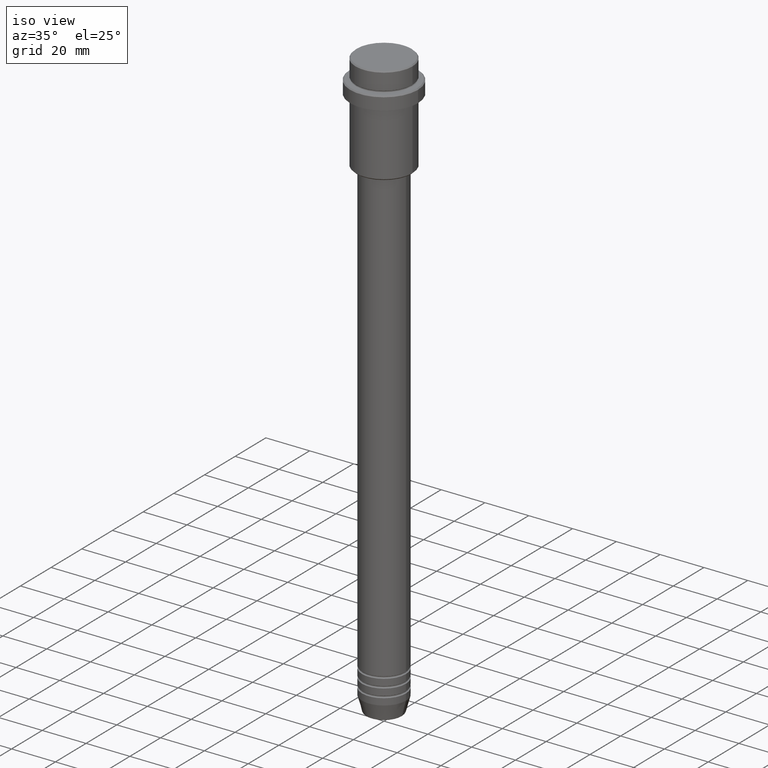
[diagram: clean part render]
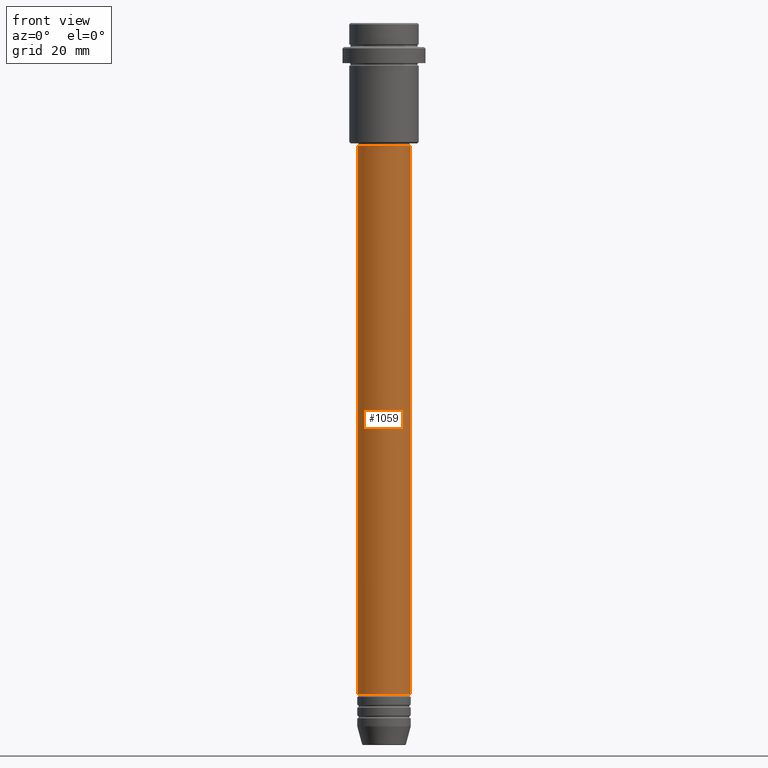
[diagram: tour spotlight — one face highlighted and labeled with its STEP entity id]
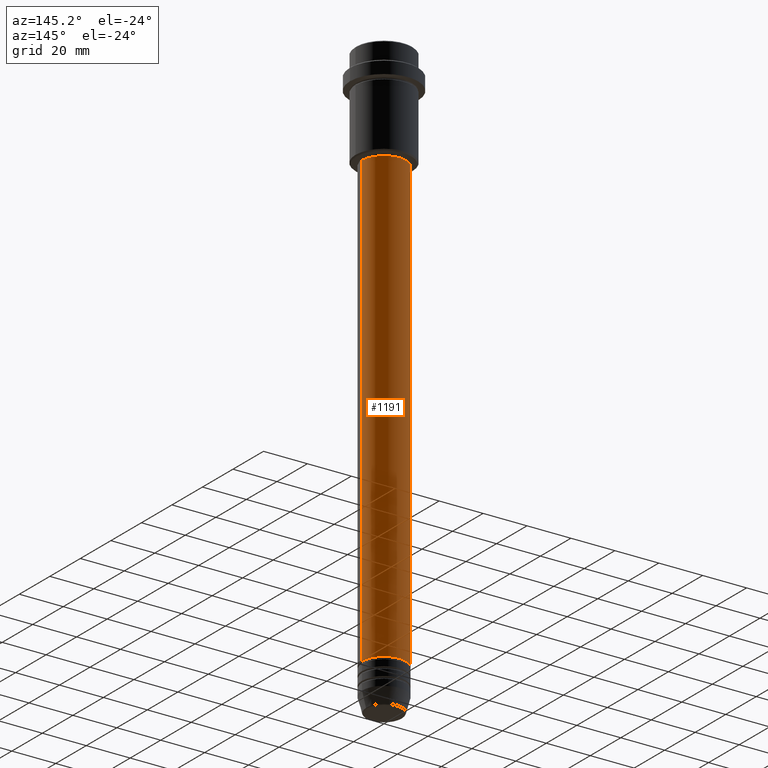
[diagram: tour spotlight — one face highlighted and labeled with its STEP entity id]
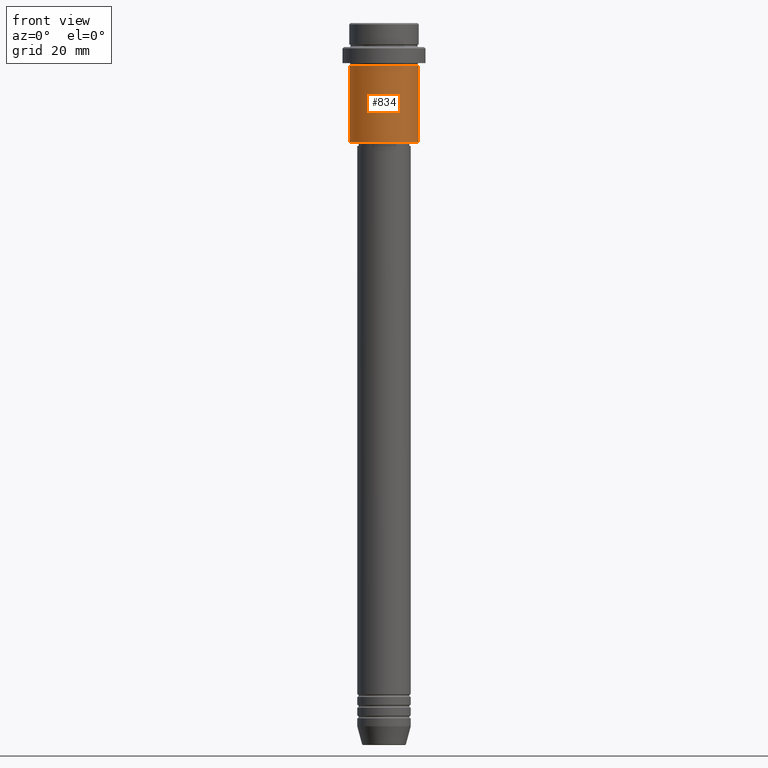
[diagram: tour spotlight — one face highlighted and labeled with its STEP entity id]
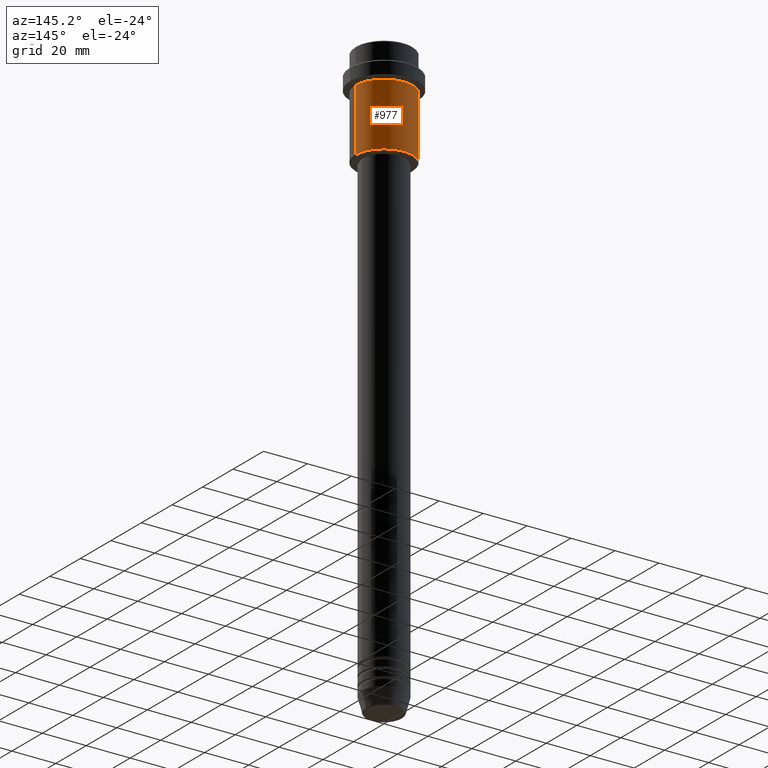
[diagram: tour spotlight — one face highlighted and labeled with its STEP entity id]
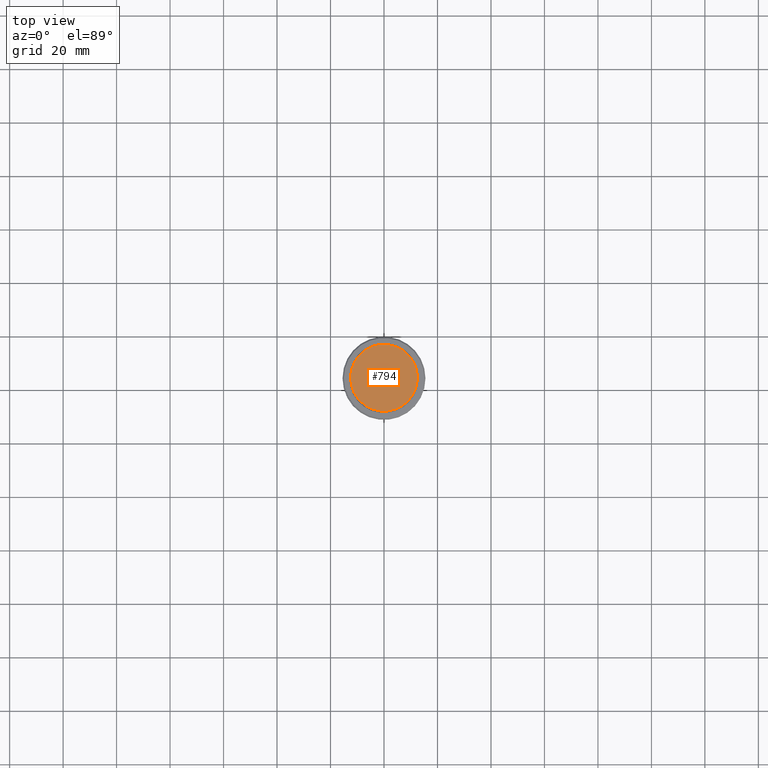
[diagram: tour spotlight — one face highlighted and labeled with its STEP entity id]
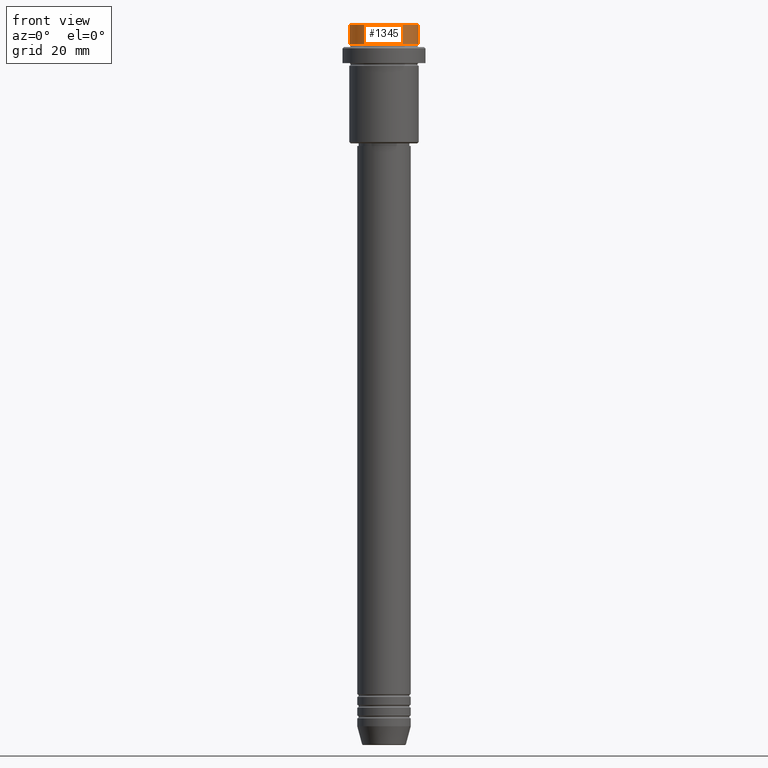
[diagram: tour spotlight — one face highlighted and labeled with its STEP entity id]
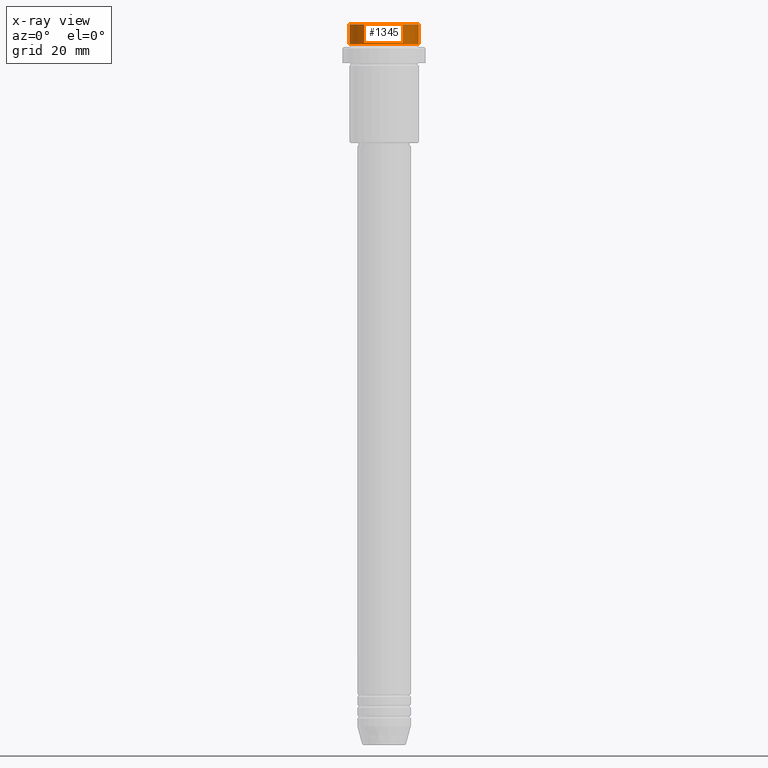
[diagram: x-ray of the same camera — body ghosted, this tour face saturated]
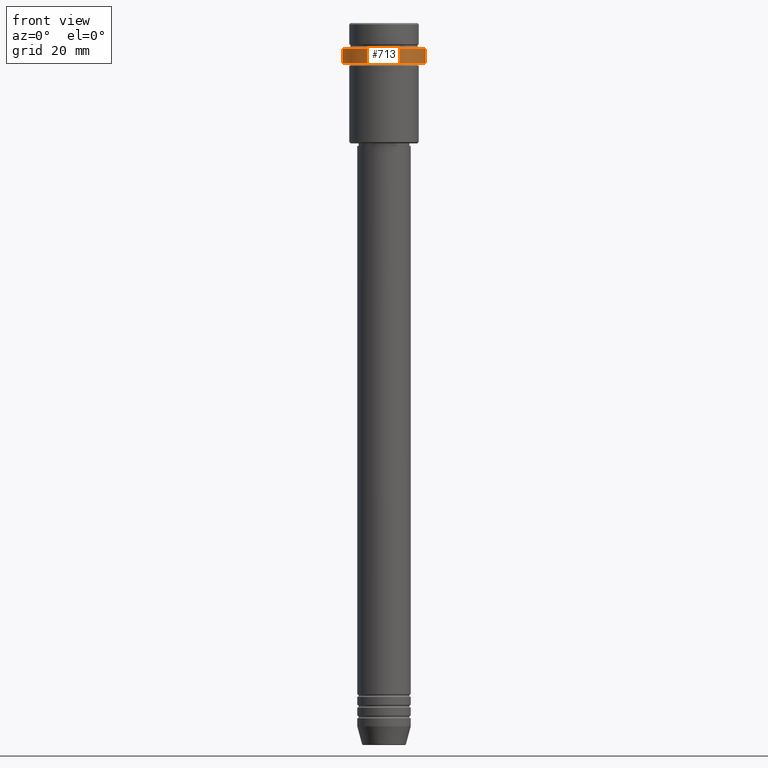
[diagram: tour spotlight — one face highlighted and labeled with its STEP entity id]
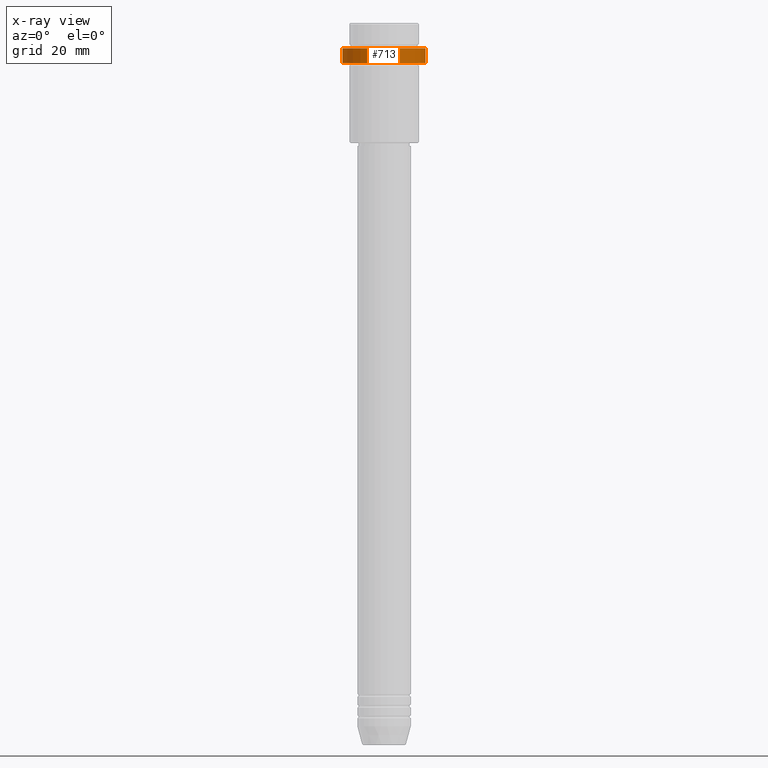
[diagram: x-ray of the same camera — body ghosted, this tour face saturated]
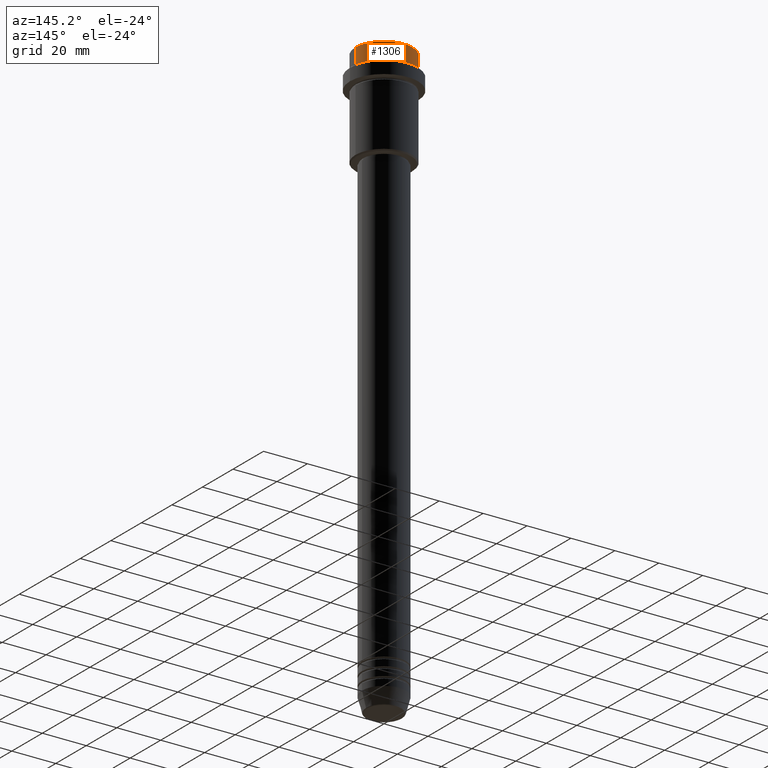
[diagram: tour spotlight — one face highlighted and labeled with its STEP entity id]
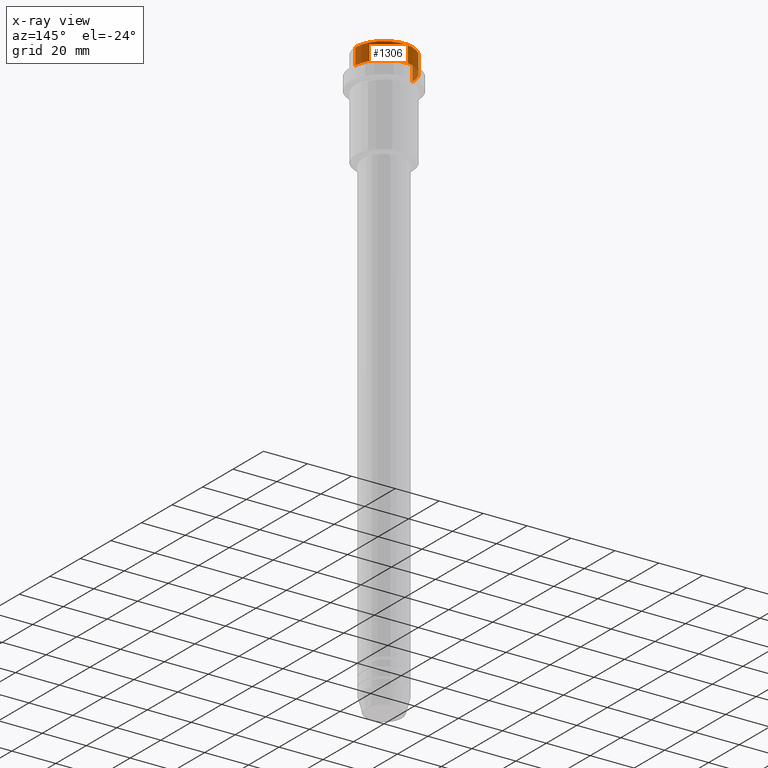
[diagram: x-ray of the same camera — body ghosted, this tour face saturated]
A machine part: a face-by-face anatomy tour. The part has 52 B-rep faces; the first image is the clean iso view, then the 8 largest visible faces are spotlighted one at a time (largest first), each with its STEP entity span.

Face 1 — front view, entity #1059. In plain terms, the highlighted cylindrical surface (edge-blend (fillet) strip) has radius 10 mm, axis along (-0, -0, 1).
Definition (entity closure, byte-faithful):
#21 = DIRECTION ( 'NONE',  ( -0.000000000000000000, -0.000000000000000000, 1.000000000000000000 ) ) ;
#34 = AXIS2_PLACEMENT_3D ( 'NONE', #577, #1003, #233 ) ;
#70 = DIRECTION ( 'NONE',  ( -0.000000000000000000, -0.000000000000000000, 1.000000000000000000 ) ) ;
#89 = EDGE_CURVE ( 'NONE', #989, #853, #238, .T. ) ;
#99 = CIRCLE ( 'NONE', #605, 10.00000000000000000 ) ;
#106 = EDGE_LOOP ( 'NONE', ( #324, #198, #1250, #1032 ) ) ;
#133 = CARTESIAN_POINT ( 'NONE',  ( -10.00000000000000178, 1.224646799147353454E-15, 0.000000000000000000 ) ) ;
#164 = DIRECTION ( 'NONE',  ( 1.000000000000000000, 0.000000000000000000, 0.000000000000000000 ) ) ;
#198 = ORIENTED_EDGE ( 'NONE', *, *, #931, .T. ) ;
#233 = DIRECTION ( 'NONE',  ( 1.000000000000000000, 0.000000000000000000, 0.000000000000000000 ) ) ;
#238 = LINE ( 'NONE', #681, #1188 ) ;
#324 = ORIENTED_EDGE ( 'NONE', *, *, #1189, .F. ) ;
#354 = CIRCLE ( 'NONE', #544, 10.00000000000000178 ) ;
#430 = EDGE_CURVE ( 'NONE', #1346, #853, #354, .T. ) ;
#544 = AXIS2_PLACEMENT_3D ( 'NONE', #1050, #70, #829 ) ;
#565 = CYLINDRICAL_SURFACE ( 'NONE', #34, 10.00000000000000178 ) ;
#577 = CARTESIAN_POINT ( 'NONE',  ( 0.000000000000000000, 0.000000000000000000, 0.000000000000000000 ) ) ;
#582 = VERTEX_POINT ( 'NONE', #751 ) ;
#605 = AXIS2_PLACEMENT_3D ( 'NONE', #1146, #1171, #164 ) ;
#681 = CARTESIAN_POINT ( 'NONE',  ( 10.00000000000000178, 0.000000000000000000, 0.000000000000000000 ) ) ;
#751 = CARTESIAN_POINT ( 'NONE',  ( -10.00000000000000000, 1.224646799147353256E-15, -250.9999999999998863 ) ) ;
#829 = DIRECTION ( 'NONE',  ( 1.000000000000000000, 0.000000000000000000, 0.000000000000000000 ) ) ;
#853 = VERTEX_POINT ( 'NONE', #1163 ) ;
#894 = DIRECTION ( 'NONE',  ( -0.000000000000000000, -0.000000000000000000, 1.000000000000000000 ) ) ;
#931 = EDGE_CURVE ( 'NONE', #582, #989, #99, .T. ) ;
#989 = VERTEX_POINT ( 'NONE', #1233 ) ;
#1003 = DIRECTION ( 'NONE',  ( -0.000000000000000000, -0.000000000000000000, 1.000000000000000000 ) ) ;
#1032 = ORIENTED_EDGE ( 'NONE', *, *, #430, .F. ) ;
#1050 = CARTESIAN_POINT ( 'NONE',  ( 0.000000000000000000, 0.000000000000000000, -46.00000000000001421 ) ) ;
#1059 = ADVANCED_FACE ( 'NONE', ( #1371 ), #565, .T. ) ;
#1146 = CARTESIAN_POINT ( 'NONE',  ( 0.000000000000000000, 0.000000000000000000, -250.9999999999998863 ) ) ;
#1163 = CARTESIAN_POINT ( 'NONE',  ( 10.00000000000000178, 0.000000000000000000, -46.00000000000001421 ) ) ;
#1171 = DIRECTION ( 'NONE',  ( -0.000000000000000000, -0.000000000000000000, 1.000000000000000000 ) ) ;
#1182 = VECTOR ( 'NONE', #21, 1000.000000000000000 ) ;
#1188 = VECTOR ( 'NONE', #894, 1000.000000000000000 ) ;
#1189 = EDGE_CURVE ( 'NONE', #582, #1346, #1211, .T. ) ;
#1211 = LINE ( 'NONE', #133, #1182 ) ;
#1221 = CARTESIAN_POINT ( 'NONE',  ( -10.00000000000000178, 1.224646799147353454E-15, -46.00000000000001421 ) ) ;
#1233 = CARTESIAN_POINT ( 'NONE',  ( 10.00000000000000000, 0.000000000000000000, -250.9999999999998863 ) ) ;
#1250 = ORIENTED_EDGE ( 'NONE', *, *, #89, .T. ) ;
#1346 = VERTEX_POINT ( 'NONE', #1221 ) ;
#1371 = FACE_OUTER_BOUND ( 'NONE', #106, .T. ) ;

Face 2 — auxiliary view, entity #1191. In plain terms, the highlighted cylindrical surface (edge-blend (fillet) strip) has radius 10 mm, axis along (-0, -0, 1).
Definition (entity closure, byte-faithful):
#21 = DIRECTION ( 'NONE',  ( -0.000000000000000000, -0.000000000000000000, 1.000000000000000000 ) ) ;
#36 = FACE_OUTER_BOUND ( 'NONE', #152, .T. ) ;
#83 = AXIS2_PLACEMENT_3D ( 'NONE', #1229, #992, #444 ) ;
#89 = EDGE_CURVE ( 'NONE', #989, #853, #238, .T. ) ;
#133 = CARTESIAN_POINT ( 'NONE',  ( -10.00000000000000178, 1.224646799147353454E-15, 0.000000000000000000 ) ) ;
#137 = DIRECTION ( 'NONE',  ( 1.000000000000000000, 0.000000000000000000, 0.000000000000000000 ) ) ;
#152 = EDGE_LOOP ( 'NONE', ( #1320, #1398, #345, #741 ) ) ;
#184 = CIRCLE ( 'NONE', #270, 10.00000000000000000 ) ;
#238 = LINE ( 'NONE', #681, #1188 ) ;
#270 = AXIS2_PLACEMENT_3D ( 'NONE', #838, #623, #494 ) ;
#345 = ORIENTED_EDGE ( 'NONE', *, *, #844, .F. ) ;
#420 = EDGE_CURVE ( 'NONE', #989, #582, #184, .T. ) ;
#444 = DIRECTION ( 'NONE',  ( 1.000000000000000000, 0.000000000000000000, 0.000000000000000000 ) ) ;
#494 = DIRECTION ( 'NONE',  ( 1.000000000000000000, 0.000000000000000000, 0.000000000000000000 ) ) ;
#568 = DIRECTION ( 'NONE',  ( -0.000000000000000000, -0.000000000000000000, 1.000000000000000000 ) ) ;
#582 = VERTEX_POINT ( 'NONE', #751 ) ;
#623 = DIRECTION ( 'NONE',  ( -0.000000000000000000, -0.000000000000000000, 1.000000000000000000 ) ) ;
#681 = CARTESIAN_POINT ( 'NONE',  ( 10.00000000000000178, 0.000000000000000000, 0.000000000000000000 ) ) ;
#741 = ORIENTED_EDGE ( 'NONE', *, *, #89, .F. ) ;
#751 = CARTESIAN_POINT ( 'NONE',  ( -10.00000000000000000, 1.224646799147353256E-15, -250.9999999999998863 ) ) ;
#838 = CARTESIAN_POINT ( 'NONE',  ( 0.000000000000000000, 0.000000000000000000, -250.9999999999998863 ) ) ;
#844 = EDGE_CURVE ( 'NONE', #853, #1346, #970, .T. ) ;
#853 = VERTEX_POINT ( 'NONE', #1163 ) ;
#864 = AXIS2_PLACEMENT_3D ( 'NONE', #1331, #568, #137 ) ;
#889 = CYLINDRICAL_SURFACE ( 'NONE', #864, 10.00000000000000178 ) ;
#894 = DIRECTION ( 'NONE',  ( -0.000000000000000000, -0.000000000000000000, 1.000000000000000000 ) ) ;
#970 = CIRCLE ( 'NONE', #83, 10.00000000000000178 ) ;
#989 = VERTEX_POINT ( 'NONE', #1233 ) ;
#992 = DIRECTION ( 'NONE',  ( -0.000000000000000000, -0.000000000000000000, 1.000000000000000000 ) ) ;
#1163 = CARTESIAN_POINT ( 'NONE',  ( 10.00000000000000178, 0.000000000000000000, -46.00000000000001421 ) ) ;
#1182 = VECTOR ( 'NONE', #21, 1000.000000000000000 ) ;
#1188 = VECTOR ( 'NONE', #894, 1000.000000000000000 ) ;
#1189 = EDGE_CURVE ( 'NONE', #582, #1346, #1211, .T. ) ;
#1191 = ADVANCED_FACE ( 'NONE', ( #36 ), #889, .T. ) ;
#1211 = LINE ( 'NONE', #133, #1182 ) ;
#1221 = CARTESIAN_POINT ( 'NONE',  ( -10.00000000000000178, 1.224646799147353454E-15, -46.00000000000001421 ) ) ;
#1229 = CARTESIAN_POINT ( 'NONE',  ( 0.000000000000000000, 0.000000000000000000, -46.00000000000001421 ) ) ;
#1233 = CARTESIAN_POINT ( 'NONE',  ( 10.00000000000000000, 0.000000000000000000, -250.9999999999998863 ) ) ;
#1320 = ORIENTED_EDGE ( 'NONE', *, *, #420, .T. ) ;
#1331 = CARTESIAN_POINT ( 'NONE',  ( 0.000000000000000000, 0.000000000000000000, 0.000000000000000000 ) ) ;
#1346 = VERTEX_POINT ( 'NONE', #1221 ) ;
#1398 = ORIENTED_EDGE ( 'NONE', *, *, #1189, .T. ) ;

Face 3 — front view, entity #834. In plain terms, the highlighted cylindrical surface (edge-blend (fillet) strip) has radius 13 mm, axis along (-0, -0, 1).
Definition (entity closure, byte-faithful):
#54 = CIRCLE ( 'NONE', #787, 13.00000000000000000 ) ;
#90 = CARTESIAN_POINT ( 'NONE',  ( 0.000000000000000000, 0.000000000000000000, -16.00000000000000000 ) ) ;
#104 = CARTESIAN_POINT ( 'NONE',  ( 13.00000000000000000, 0.000000000000000000, -44.50000000000004263 ) ) ;
#220 = DIRECTION ( 'NONE',  ( -0.000000000000000000, -0.000000000000000000, 1.000000000000000000 ) ) ;
#227 = DIRECTION ( 'NONE',  ( -0.000000000000000000, -0.000000000000000000, 1.000000000000000000 ) ) ;
#269 = VERTEX_POINT ( 'NONE', #104 ) ;
#275 = EDGE_CURVE ( 'NONE', #269, #1235, #429, .T. ) ;
#300 = VERTEX_POINT ( 'NONE', #1341 ) ;
#330 = VECTOR ( 'NONE', #529, 1000.000000000000000 ) ;
#386 = CARTESIAN_POINT ( 'NONE',  ( 0.000000000000000000, 0.000000000000000000, -44.50000000000004263 ) ) ;
#411 = DIRECTION ( 'NONE',  ( 1.000000000000000000, 0.000000000000000000, 0.000000000000000000 ) ) ;
#429 = LINE ( 'NONE', #1317, #330 ) ;
#457 = LINE ( 'NONE', #900, #1127 ) ;
#529 = DIRECTION ( 'NONE',  ( -0.000000000000000000, -0.000000000000000000, 1.000000000000000000 ) ) ;
#543 = EDGE_CURVE ( 'NONE', #617, #1235, #54, .T. ) ;
#547 = ORIENTED_EDGE ( 'NONE', *, *, #275, .T. ) ;
#576 = ORIENTED_EDGE ( 'NONE', *, *, #671, .T. ) ;
#617 = VERTEX_POINT ( 'NONE', #1287 ) ;
#634 = CIRCLE ( 'NONE', #1247, 13.00000000000000000 ) ;
#659 = EDGE_CURVE ( 'NONE', #300, #617, #457, .T. ) ;
#671 = EDGE_CURVE ( 'NONE', #300, #269, #634, .T. ) ;
#733 = CARTESIAN_POINT ( 'NONE',  ( 13.00000000000000000, 0.000000000000000000, -16.00000000000000000 ) ) ;
#761 = ORIENTED_EDGE ( 'NONE', *, *, #543, .F. ) ;
#775 = FACE_OUTER_BOUND ( 'NONE', #839, .T. ) ;
#787 = AXIS2_PLACEMENT_3D ( 'NONE', #90, #1315, #411 ) ;
#788 = CARTESIAN_POINT ( 'NONE',  ( 0.000000000000000000, 0.000000000000000000, 0.000000000000000000 ) ) ;
#811 = AXIS2_PLACEMENT_3D ( 'NONE', #788, #227, #909 ) ;
#824 = DIRECTION ( 'NONE',  ( -0.000000000000000000, -0.000000000000000000, 1.000000000000000000 ) ) ;
#834 = ADVANCED_FACE ( 'NONE', ( #775 ), #1212, .T. ) ;
#839 = EDGE_LOOP ( 'NONE', ( #1325, #576, #547, #761 ) ) ;
#900 = CARTESIAN_POINT ( 'NONE',  ( -13.00000000000000000, 1.592040838891559095E-15, 0.000000000000000000 ) ) ;
#909 = DIRECTION ( 'NONE',  ( 1.000000000000000000, 0.000000000000000000, 0.000000000000000000 ) ) ;
#1127 = VECTOR ( 'NONE', #220, 1000.000000000000000 ) ;
#1142 = DIRECTION ( 'NONE',  ( -1.000000000000000000, 0.000000000000000000, 0.000000000000000000 ) ) ;
#1212 = CYLINDRICAL_SURFACE ( 'NONE', #811, 13.00000000000000000 ) ;
#1235 = VERTEX_POINT ( 'NONE', #733 ) ;
#1247 = AXIS2_PLACEMENT_3D ( 'NONE', #386, #824, #1142 ) ;
#1287 = CARTESIAN_POINT ( 'NONE',  ( -13.00000000000000000, 1.592040838891559095E-15, -16.00000000000000000 ) ) ;
#1315 = DIRECTION ( 'NONE',  ( -0.000000000000000000, -0.000000000000000000, 1.000000000000000000 ) ) ;
#1317 = CARTESIAN_POINT ( 'NONE',  ( 13.00000000000000000, 0.000000000000000000, 0.000000000000000000 ) ) ;
#1325 = ORIENTED_EDGE ( 'NONE', *, *, #659, .F. ) ;
#1341 = CARTESIAN_POINT ( 'NONE',  ( -13.00000000000000000, 1.592040838891559095E-15, -44.50000000000004263 ) ) ;

Face 4 — auxiliary view, entity #977. In plain terms, the highlighted cylindrical surface (edge-blend (fillet) strip) has radius 13 mm, axis along (-0, -0, 1).
Definition (entity closure, byte-faithful):
#4 = CARTESIAN_POINT ( 'NONE',  ( 0.000000000000000000, 0.000000000000000000, 0.000000000000000000 ) ) ;
#52 = EDGE_LOOP ( 'NONE', ( #645, #1267, #406, #1288 ) ) ;
#104 = CARTESIAN_POINT ( 'NONE',  ( 13.00000000000000000, 0.000000000000000000, -44.50000000000004263 ) ) ;
#107 = AXIS2_PLACEMENT_3D ( 'NONE', #171, #609, #1046 ) ;
#171 = CARTESIAN_POINT ( 'NONE',  ( 0.000000000000000000, 0.000000000000000000, -44.50000000000004263 ) ) ;
#192 = EDGE_CURVE ( 'NONE', #1235, #617, #1114, .T. ) ;
#220 = DIRECTION ( 'NONE',  ( -0.000000000000000000, -0.000000000000000000, 1.000000000000000000 ) ) ;
#232 = EDGE_CURVE ( 'NONE', #269, #300, #729, .T. ) ;
#269 = VERTEX_POINT ( 'NONE', #104 ) ;
#275 = EDGE_CURVE ( 'NONE', #269, #1235, #429, .T. ) ;
#300 = VERTEX_POINT ( 'NONE', #1341 ) ;
#305 = DIRECTION ( 'NONE',  ( -0.000000000000000000, -0.000000000000000000, 1.000000000000000000 ) ) ;
#330 = VECTOR ( 'NONE', #529, 1000.000000000000000 ) ;
#406 = ORIENTED_EDGE ( 'NONE', *, *, #192, .F. ) ;
#429 = LINE ( 'NONE', #1317, #330 ) ;
#433 = DIRECTION ( 'NONE',  ( 1.000000000000000000, 0.000000000000000000, 0.000000000000000000 ) ) ;
#445 = AXIS2_PLACEMENT_3D ( 'NONE', #1382, #840, #854 ) ;
#457 = LINE ( 'NONE', #900, #1127 ) ;
#529 = DIRECTION ( 'NONE',  ( -0.000000000000000000, -0.000000000000000000, 1.000000000000000000 ) ) ;
#609 = DIRECTION ( 'NONE',  ( -0.000000000000000000, -0.000000000000000000, 1.000000000000000000 ) ) ;
#617 = VERTEX_POINT ( 'NONE', #1287 ) ;
#645 = ORIENTED_EDGE ( 'NONE', *, *, #232, .T. ) ;
#659 = EDGE_CURVE ( 'NONE', #300, #617, #457, .T. ) ;
#729 = CIRCLE ( 'NONE', #107, 13.00000000000000000 ) ;
#733 = CARTESIAN_POINT ( 'NONE',  ( 13.00000000000000000, 0.000000000000000000, -16.00000000000000000 ) ) ;
#764 = CYLINDRICAL_SURFACE ( 'NONE', #1316, 13.00000000000000000 ) ;
#840 = DIRECTION ( 'NONE',  ( -0.000000000000000000, -0.000000000000000000, 1.000000000000000000 ) ) ;
#854 = DIRECTION ( 'NONE',  ( 1.000000000000000000, 0.000000000000000000, 0.000000000000000000 ) ) ;
#900 = CARTESIAN_POINT ( 'NONE',  ( -13.00000000000000000, 1.592040838891559095E-15, 0.000000000000000000 ) ) ;
#968 = FACE_OUTER_BOUND ( 'NONE', #52, .T. ) ;
#977 = ADVANCED_FACE ( 'NONE', ( #968 ), #764, .T. ) ;
#1046 = DIRECTION ( 'NONE',  ( -1.000000000000000000, 0.000000000000000000, 0.000000000000000000 ) ) ;
#1114 = CIRCLE ( 'NONE', #445, 13.00000000000000000 ) ;
#1127 = VECTOR ( 'NONE', #220, 1000.000000000000000 ) ;
#1235 = VERTEX_POINT ( 'NONE', #733 ) ;
#1267 = ORIENTED_EDGE ( 'NONE', *, *, #659, .T. ) ;
#1287 = CARTESIAN_POINT ( 'NONE',  ( -13.00000000000000000, 1.592040838891559095E-15, -16.00000000000000000 ) ) ;
#1288 = ORIENTED_EDGE ( 'NONE', *, *, #275, .F. ) ;
#1316 = AXIS2_PLACEMENT_3D ( 'NONE', #4, #305, #433 ) ;
#1317 = CARTESIAN_POINT ( 'NONE',  ( 13.00000000000000000, 0.000000000000000000, 0.000000000000000000 ) ) ;
#1341 = CARTESIAN_POINT ( 'NONE',  ( -13.00000000000000000, 1.592040838891559095E-15, -44.50000000000004263 ) ) ;
#1382 = CARTESIAN_POINT ( 'NONE',  ( 0.000000000000000000, 0.000000000000000000, -16.00000000000000000 ) ) ;

Face 5 — top view, entity #794. In plain terms, the highlighted planar face has unit normal (0, -0, 1).
Definition (entity closure, byte-faithful):
#15 = ORIENTED_EDGE ( 'NONE', *, *, #1280, .T. ) ;
#56 = AXIS2_PLACEMENT_3D ( 'NONE', #683, #1116, #803 ) ;
#80 = DIRECTION ( 'NONE',  ( -0.000000000000000000, -0.000000000000000000, 1.000000000000000000 ) ) ;
#460 = PLANE ( 'NONE',  #56 ) ;
#683 = CARTESIAN_POINT ( 'NONE',  ( 0.000000000000000000, 0.000000000000000000, 0.000000000000000000 ) ) ;
#690 = EDGE_CURVE ( 'NONE', #1344, #703, #1154, .T. ) ;
#695 = FACE_OUTER_BOUND ( 'NONE', #1051, .T. ) ;
#703 = VERTEX_POINT ( 'NONE', #1152 ) ;
#758 = CARTESIAN_POINT ( 'NONE',  ( -12.49999999999998579, 0.000000000000000000, 0.000000000000000000 ) ) ;
#794 = ADVANCED_FACE ( 'NONE', ( #695 ), #460, .T. ) ;
#803 = DIRECTION ( 'NONE',  ( 1.000000000000000000, 0.000000000000000000, 0.000000000000000000 ) ) ;
#807 = CARTESIAN_POINT ( 'NONE',  ( 0.000000000000000000, 0.000000000000000000, 0.000000000000000000 ) ) ;
#832 = DIRECTION ( 'NONE',  ( -0.000000000000000000, -0.000000000000000000, 1.000000000000000000 ) ) ;
#857 = AXIS2_PLACEMENT_3D ( 'NONE', #807, #832, #1350 ) ;
#1051 = EDGE_LOOP ( 'NONE', ( #1406, #15 ) ) ;
#1061 = CARTESIAN_POINT ( 'NONE',  ( 0.000000000000000000, 0.000000000000000000, 0.000000000000000000 ) ) ;
#1070 = CIRCLE ( 'NONE', #1252, 12.49999999999998579 ) ;
#1116 = DIRECTION ( 'NONE',  ( 0.000000000000000000, -0.000000000000000000, 1.000000000000000000 ) ) ;
#1152 = CARTESIAN_POINT ( 'NONE',  ( 12.49999999999998579, 1.561424668912874125E-15, 0.000000000000000000 ) ) ;
#1154 = CIRCLE ( 'NONE', #857, 12.49999999999998579 ) ;
#1252 = AXIS2_PLACEMENT_3D ( 'NONE', #1061, #80, #1266 ) ;
#1266 = DIRECTION ( 'NONE',  ( 1.000000000000000000, 0.000000000000000000, 0.000000000000000000 ) ) ;
#1280 = EDGE_CURVE ( 'NONE', #703, #1344, #1070, .T. ) ;
#1344 = VERTEX_POINT ( 'NONE', #758 ) ;
#1350 = DIRECTION ( 'NONE',  ( 1.000000000000000000, 0.000000000000000000, 0.000000000000000000 ) ) ;
#1406 = ORIENTED_EDGE ( 'NONE', *, *, #690, .T. ) ;

Face 6 — front view, entity #1345. An x-ray twin of the same camera follows (body ghosted, this face saturated) — the face is partly hidden behind the body. In plain terms, the highlighted cylindrical surface (edge-blend (fillet) strip) has radius 13 mm, axis along (-0, -0, 1).
Definition (entity closure, byte-faithful):
#92 = CARTESIAN_POINT ( 'NONE',  ( -12.99999999999999822, 1.592040838891558898E-15, -7.999999999999998224 ) ) ;
#93 = VERTEX_POINT ( 'NONE', #924 ) ;
#113 = CYLINDRICAL_SURFACE ( 'NONE', #993, 12.99999999999999822 ) ;
#160 = DIRECTION ( 'NONE',  ( 1.000000000000000000, 0.000000000000000000, 0.000000000000000000 ) ) ;
#201 = VECTOR ( 'NONE', #750, 1000.000000000000000 ) ;
#203 = CARTESIAN_POINT ( 'NONE',  ( 12.99999999999999822, 0.000000000000000000, 0.000000000000000000 ) ) ;
#205 = CARTESIAN_POINT ( 'NONE',  ( 12.99999999999999822, 0.000000000000000000, -0.5000000000000037748 ) ) ;
#223 = DIRECTION ( 'NONE',  ( -0.000000000000000000, -0.000000000000000000, 1.000000000000000000 ) ) ;
#245 = DIRECTION ( 'NONE',  ( 1.000000000000000000, 0.000000000000000000, 0.000000000000000000 ) ) ;
#272 = VERTEX_POINT ( 'NONE', #92 ) ;
#276 = VERTEX_POINT ( 'NONE', #871 ) ;
#315 = ORIENTED_EDGE ( 'NONE', *, *, #388, .T. ) ;
#384 = CARTESIAN_POINT ( 'NONE',  ( 0.000000000000000000, 0.000000000000000000, -0.5000000000000037748 ) ) ;
#388 = EDGE_CURVE ( 'NONE', #502, #93, #1024, .T. ) ;
#428 = LINE ( 'NONE', #641, #766 ) ;
#463 = ORIENTED_EDGE ( 'NONE', *, *, #563, .F. ) ;
#502 = VERTEX_POINT ( 'NONE', #205 ) ;
#518 = ORIENTED_EDGE ( 'NONE', *, *, #535, .T. ) ;
#535 = EDGE_CURVE ( 'NONE', #272, #276, #578, .T. ) ;
#563 = EDGE_CURVE ( 'NONE', #272, #93, #428, .T. ) ;
#578 = CIRCLE ( 'NONE', #1199, 12.99999999999999822 ) ;
#601 = ORIENTED_EDGE ( 'NONE', *, *, #1326, .T. ) ;
#641 = CARTESIAN_POINT ( 'NONE',  ( -12.99999999999999822, 1.592040838891558898E-15, 0.000000000000000000 ) ) ;
#647 = DIRECTION ( 'NONE',  ( -0.000000000000000000, -0.000000000000000000, 1.000000000000000000 ) ) ;
#750 = DIRECTION ( 'NONE',  ( -0.000000000000000000, -0.000000000000000000, 1.000000000000000000 ) ) ;
#766 = VECTOR ( 'NONE', #647, 1000.000000000000000 ) ;
#871 = CARTESIAN_POINT ( 'NONE',  ( 12.99999999999999822, 0.000000000000000000, -7.999999999999998224 ) ) ;
#924 = CARTESIAN_POINT ( 'NONE',  ( -12.99999999999999822, 1.592040838891558898E-15, -0.5000000000000037748 ) ) ;
#954 = LINE ( 'NONE', #203, #201 ) ;
#993 = AXIS2_PLACEMENT_3D ( 'NONE', #1192, #1086, #245 ) ;
#1024 = CIRCLE ( 'NONE', #1208, 12.99999999999999822 ) ;
#1082 = DIRECTION ( 'NONE',  ( 1.000000000000000000, 0.000000000000000000, 0.000000000000000000 ) ) ;
#1086 = DIRECTION ( 'NONE',  ( -0.000000000000000000, -0.000000000000000000, 1.000000000000000000 ) ) ;
#1167 = DIRECTION ( 'NONE',  ( 0.000000000000000000, 0.000000000000000000, -1.000000000000000000 ) ) ;
#1183 = CARTESIAN_POINT ( 'NONE',  ( 0.000000000000000000, 0.000000000000000000, -7.999999999999998224 ) ) ;
#1192 = CARTESIAN_POINT ( 'NONE',  ( 0.000000000000000000, 0.000000000000000000, 0.000000000000000000 ) ) ;
#1199 = AXIS2_PLACEMENT_3D ( 'NONE', #1183, #223, #1082 ) ;
#1208 = AXIS2_PLACEMENT_3D ( 'NONE', #384, #1167, #160 ) ;
#1254 = EDGE_LOOP ( 'NONE', ( #463, #518, #601, #315 ) ) ;
#1326 = EDGE_CURVE ( 'NONE', #276, #502, #954, .T. ) ;
#1345 = ADVANCED_FACE ( 'NONE', ( #1410 ), #113, .T. ) ;
#1410 = FACE_OUTER_BOUND ( 'NONE', #1254, .T. ) ;

Face 7 — front view, entity #713. An x-ray twin of the same camera follows (body ghosted, this face saturated) — the face is partly hidden behind the body. In plain terms, the highlighted cylindrical surface (partial cylindrical patch) has radius 15.5 mm, axis along (-0, -0, 1).
Definition (entity closure, byte-faithful):
#31 = CARTESIAN_POINT ( 'NONE',  ( -15.50000000000000000, 1.898202538678397557E-15, -9.499999999999984013 ) ) ;
#59 = AXIS2_PLACEMENT_3D ( 'NONE', #903, #125, #449 ) ;
#121 = VECTOR ( 'NONE', #1128, 1000.000000000000000 ) ;
#125 = DIRECTION ( 'NONE',  ( 0.000000000000000000, 0.000000000000000000, -1.000000000000000000 ) ) ;
#180 = DIRECTION ( 'NONE',  ( 1.000000000000000000, 0.000000000000000000, 0.000000000000000000 ) ) ;
#196 = CIRCLE ( 'NONE', #743, 15.50000000000000000 ) ;
#240 = CARTESIAN_POINT ( 'NONE',  ( -15.50000000000000000, 1.898202538678397557E-15, -15.00000000000000000 ) ) ;
#292 = EDGE_CURVE ( 'NONE', #1151, #1238, #883, .T. ) ;
#347 = LINE ( 'NONE', #780, #121 ) ;
#360 = CYLINDRICAL_SURFACE ( 'NONE', #1180, 15.50000000000000000 ) ;
#403 = ORIENTED_EDGE ( 'NONE', *, *, #813, .F. ) ;
#441 = CIRCLE ( 'NONE', #59, 15.50000000000000000 ) ;
#449 = DIRECTION ( 'NONE',  ( 1.000000000000000000, 0.000000000000000000, 0.000000000000000000 ) ) ;
#471 = ORIENTED_EDGE ( 'NONE', *, *, #292, .T. ) ;
#496 = CARTESIAN_POINT ( 'NONE',  ( 0.000000000000000000, 0.000000000000000000, 0.000000000000000000 ) ) ;
#498 = CARTESIAN_POINT ( 'NONE',  ( 15.50000000000000000, 0.000000000000000000, -9.499999999999984013 ) ) ;
#607 = FACE_OUTER_BOUND ( 'NONE', #1348, .T. ) ;
#633 = ORIENTED_EDGE ( 'NONE', *, *, #728, .T. ) ;
#640 = CARTESIAN_POINT ( 'NONE',  ( 15.50000000000000000, 0.000000000000000000, -15.00000000000000000 ) ) ;
#704 = CARTESIAN_POINT ( 'NONE',  ( 0.000000000000000000, 0.000000000000000000, -15.00000000000000000 ) ) ;
#713 = ADVANCED_FACE ( 'NONE', ( #607 ), #360, .T. ) ;
#722 = ORIENTED_EDGE ( 'NONE', *, *, #1175, .T. ) ;
#728 = EDGE_CURVE ( 'NONE', #1377, #1151, #196, .T. ) ;
#743 = AXIS2_PLACEMENT_3D ( 'NONE', #704, #1161, #180 ) ;
#780 = CARTESIAN_POINT ( 'NONE',  ( -15.50000000000000000, 1.898202538678397557E-15, 0.000000000000000000 ) ) ;
#813 = EDGE_CURVE ( 'NONE', #1377, #1300, #347, .T. ) ;
#883 = LINE ( 'NONE', #1083, #904 ) ;
#903 = CARTESIAN_POINT ( 'NONE',  ( 0.000000000000000000, 0.000000000000000000, -9.499999999999984013 ) ) ;
#904 = VECTOR ( 'NONE', #1018, 1000.000000000000000 ) ;
#930 = DIRECTION ( 'NONE',  ( -0.000000000000000000, -0.000000000000000000, 1.000000000000000000 ) ) ;
#1018 = DIRECTION ( 'NONE',  ( -0.000000000000000000, -0.000000000000000000, 1.000000000000000000 ) ) ;
#1083 = CARTESIAN_POINT ( 'NONE',  ( 15.50000000000000000, 0.000000000000000000, 0.000000000000000000 ) ) ;
#1128 = DIRECTION ( 'NONE',  ( -0.000000000000000000, -0.000000000000000000, 1.000000000000000000 ) ) ;
#1151 = VERTEX_POINT ( 'NONE', #640 ) ;
#1161 = DIRECTION ( 'NONE',  ( -0.000000000000000000, -0.000000000000000000, 1.000000000000000000 ) ) ;
#1175 = EDGE_CURVE ( 'NONE', #1238, #1300, #441, .T. ) ;
#1180 = AXIS2_PLACEMENT_3D ( 'NONE', #496, #930, #1246 ) ;
#1238 = VERTEX_POINT ( 'NONE', #498 ) ;
#1246 = DIRECTION ( 'NONE',  ( 1.000000000000000000, 0.000000000000000000, 0.000000000000000000 ) ) ;
#1300 = VERTEX_POINT ( 'NONE', #31 ) ;
#1348 = EDGE_LOOP ( 'NONE', ( #403, #633, #471, #722 ) ) ;
#1377 = VERTEX_POINT ( 'NONE', #240 ) ;

Face 8 — auxiliary view, entity #1306. An x-ray twin of the same camera follows (body ghosted, this face saturated) — the face is partly hidden behind the body. In plain terms, the highlighted cylindrical surface (edge-blend (fillet) strip) has radius 13 mm, axis along (-0, -0, 1).
Definition (entity closure, byte-faithful):
#20 = DIRECTION ( 'NONE',  ( 0.000000000000000000, 0.000000000000000000, -1.000000000000000000 ) ) ;
#39 = AXIS2_PLACEMENT_3D ( 'NONE', #267, #20, #1228 ) ;
#50 = EDGE_CURVE ( 'NONE', #93, #502, #426, .T. ) ;
#92 = CARTESIAN_POINT ( 'NONE',  ( -12.99999999999999822, 1.592040838891558898E-15, -7.999999999999998224 ) ) ;
#93 = VERTEX_POINT ( 'NONE', #924 ) ;
#129 = AXIS2_PLACEMENT_3D ( 'NONE', #626, #281, #1153 ) ;
#145 = DIRECTION ( 'NONE',  ( 1.000000000000000000, 0.000000000000000000, 0.000000000000000000 ) ) ;
#156 = EDGE_CURVE ( 'NONE', #276, #272, #261, .T. ) ;
#183 = EDGE_LOOP ( 'NONE', ( #1386, #221, #606, #768 ) ) ;
#201 = VECTOR ( 'NONE', #750, 1000.000000000000000 ) ;
#203 = CARTESIAN_POINT ( 'NONE',  ( 12.99999999999999822, 0.000000000000000000, 0.000000000000000000 ) ) ;
#205 = CARTESIAN_POINT ( 'NONE',  ( 12.99999999999999822, 0.000000000000000000, -0.5000000000000037748 ) ) ;
#221 = ORIENTED_EDGE ( 'NONE', *, *, #563, .T. ) ;
#261 = CIRCLE ( 'NONE', #129, 12.99999999999999822 ) ;
#267 = CARTESIAN_POINT ( 'NONE',  ( 0.000000000000000000, 0.000000000000000000, -0.5000000000000037748 ) ) ;
#272 = VERTEX_POINT ( 'NONE', #92 ) ;
#276 = VERTEX_POINT ( 'NONE', #871 ) ;
#281 = DIRECTION ( 'NONE',  ( -0.000000000000000000, -0.000000000000000000, 1.000000000000000000 ) ) ;
#351 = CYLINDRICAL_SURFACE ( 'NONE', #812, 12.99999999999999822 ) ;
#426 = CIRCLE ( 'NONE', #39, 12.99999999999999822 ) ;
#428 = LINE ( 'NONE', #641, #766 ) ;
#502 = VERTEX_POINT ( 'NONE', #205 ) ;
#559 = FACE_OUTER_BOUND ( 'NONE', #183, .T. ) ;
#563 = EDGE_CURVE ( 'NONE', #272, #93, #428, .T. ) ;
#606 = ORIENTED_EDGE ( 'NONE', *, *, #50, .T. ) ;
#626 = CARTESIAN_POINT ( 'NONE',  ( 0.000000000000000000, 0.000000000000000000, -7.999999999999998224 ) ) ;
#641 = CARTESIAN_POINT ( 'NONE',  ( -12.99999999999999822, 1.592040838891558898E-15, 0.000000000000000000 ) ) ;
#647 = DIRECTION ( 'NONE',  ( -0.000000000000000000, -0.000000000000000000, 1.000000000000000000 ) ) ;
#750 = DIRECTION ( 'NONE',  ( -0.000000000000000000, -0.000000000000000000, 1.000000000000000000 ) ) ;
#766 = VECTOR ( 'NONE', #647, 1000.000000000000000 ) ;
#768 = ORIENTED_EDGE ( 'NONE', *, *, #1326, .F. ) ;
#812 = AXIS2_PLACEMENT_3D ( 'NONE', #998, #1125, #145 ) ;
#871 = CARTESIAN_POINT ( 'NONE',  ( 12.99999999999999822, 0.000000000000000000, -7.999999999999998224 ) ) ;
#924 = CARTESIAN_POINT ( 'NONE',  ( -12.99999999999999822, 1.592040838891558898E-15, -0.5000000000000037748 ) ) ;
#954 = LINE ( 'NONE', #203, #201 ) ;
#998 = CARTESIAN_POINT ( 'NONE',  ( 0.000000000000000000, 0.000000000000000000, 0.000000000000000000 ) ) ;
#1125 = DIRECTION ( 'NONE',  ( -0.000000000000000000, -0.000000000000000000, 1.000000000000000000 ) ) ;
#1153 = DIRECTION ( 'NONE',  ( 1.000000000000000000, 0.000000000000000000, 0.000000000000000000 ) ) ;
#1228 = DIRECTION ( 'NONE',  ( 1.000000000000000000, 0.000000000000000000, 0.000000000000000000 ) ) ;
#1306 = ADVANCED_FACE ( 'NONE', ( #559 ), #351, .T. ) ;
#1326 = EDGE_CURVE ( 'NONE', #276, #502, #954, .T. ) ;
#1386 = ORIENTED_EDGE ( 'NONE', *, *, #156, .T. ) ;